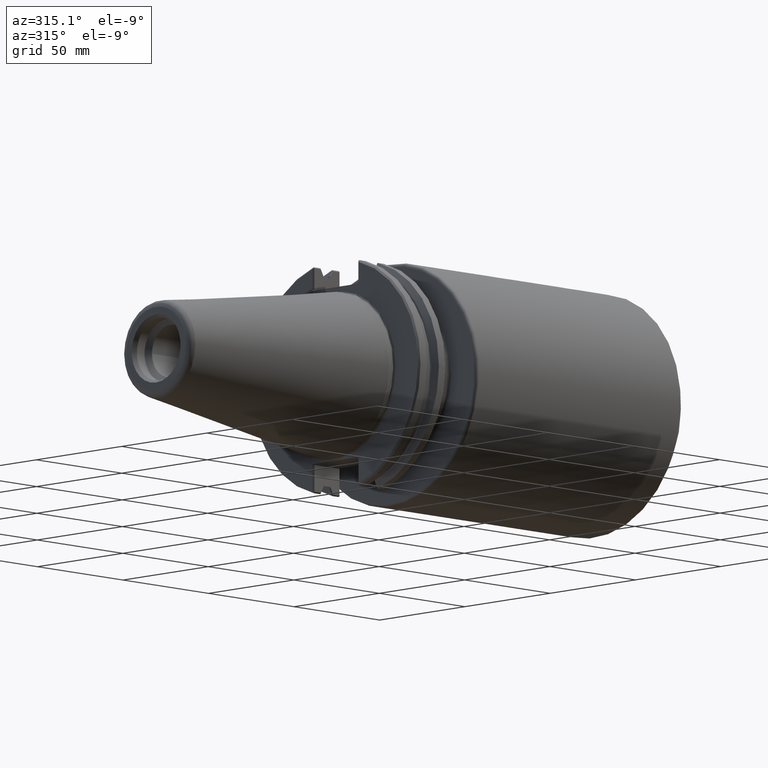
[diagram: clean part render]
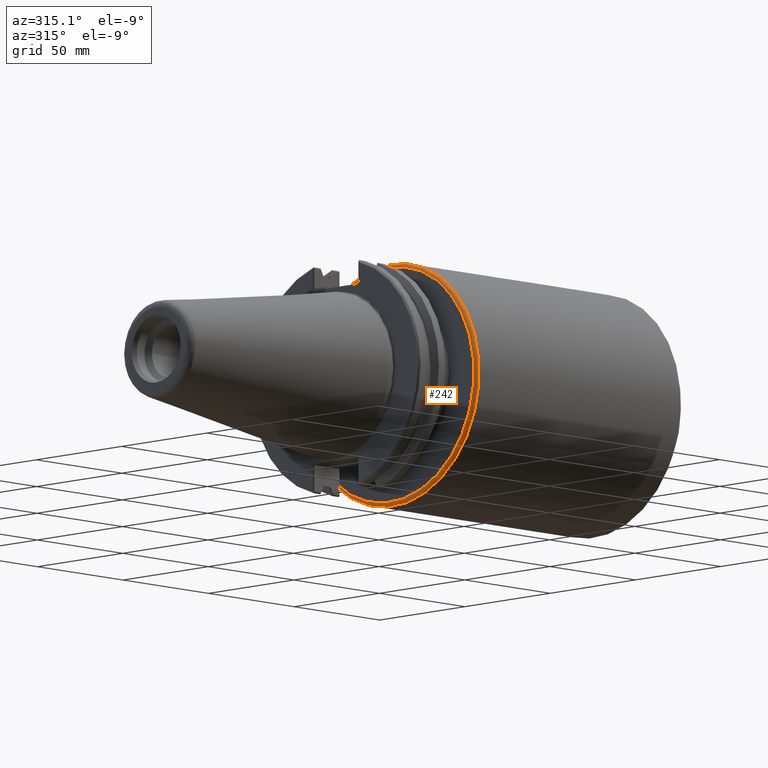
[diagram: same view with one face highlighted and labeled with its STEP entity id]
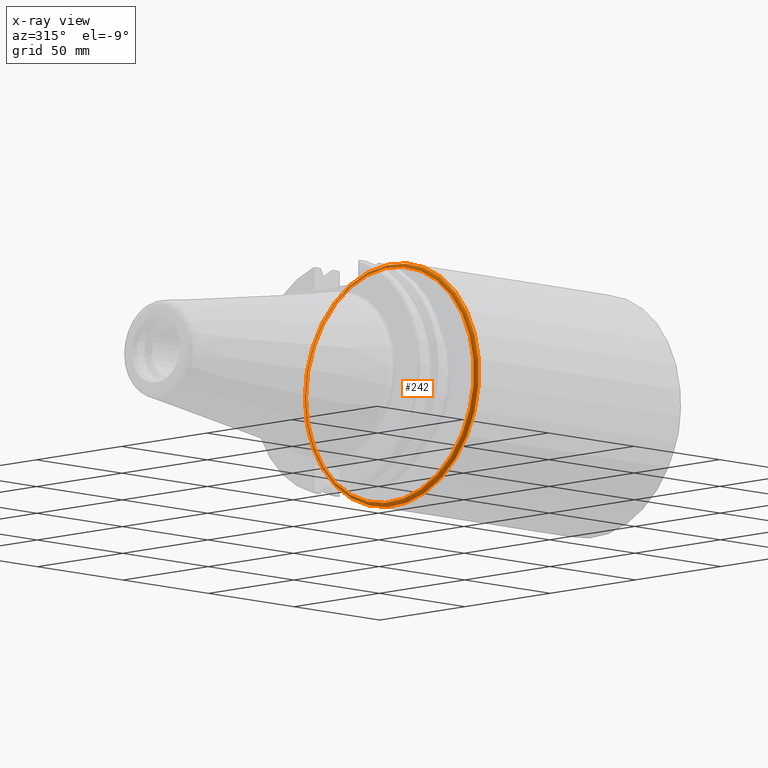
[diagram: x-ray of the same camera — body ghosted, the highlighted face saturated]
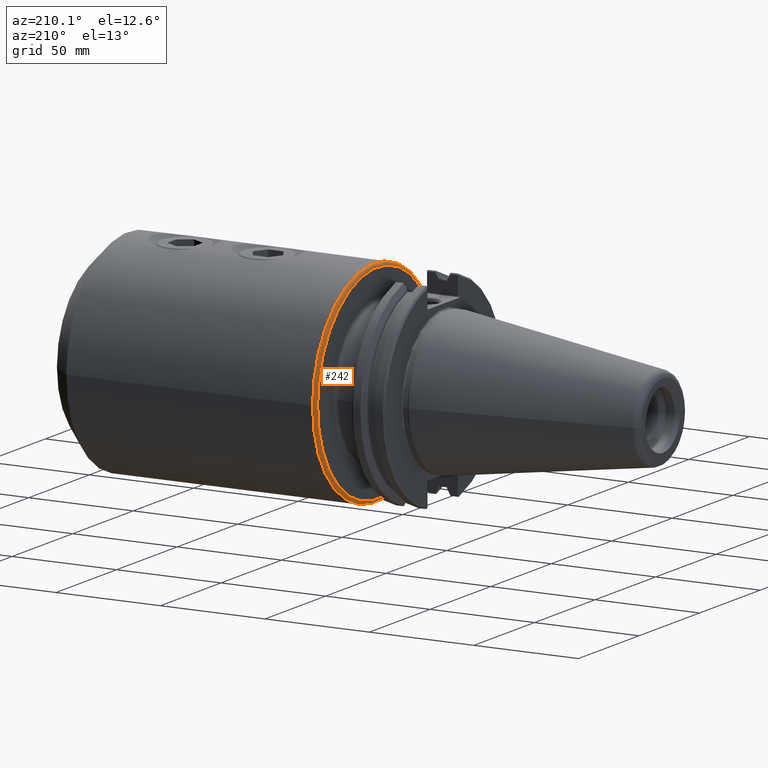
[diagram: same view with one face highlighted and labeled with its STEP entity id]
A machine part, auxiliary view. The second image highlights one B-rep face of the part: STEP entity #242.
The next image is the same camera in x-ray: the body ghosted, the highlighted face saturated — about 15% of this face is hidden behind the body in this view.
A second angle (auxiliary view) of the same face is appended — the face is thin or edge-on in the first view.
In plain terms, the highlighted toroidal blend (fillet) surface has major radius 49.276 mm and minor (blend) radius 1.524 mm.
Its self-contained STEP definition (entity closure, byte-faithful):
#208=CARTESIAN_POINT('',(1.38,1.94,0.0));
#209=VERTEX_POINT('',#208);
#210=CARTESIAN_POINT('',(1.38,0.0,0.0));
#211=DIRECTION('',(1.0,0.0,0.0));
#212=DIRECTION('',(0.0,-1.0,0.0));
#213=AXIS2_PLACEMENT_3D('',#210,#211,#212);
#214=CIRCLE('',#213,1.94);
#215=EDGE_CURVE('',#209,#209,#214,.T.);
#223=CARTESIAN_POINT('',(1.44,0.0,0.0));
#224=DIRECTION('',(1.0,0.0,0.0));
#225=DIRECTION('',(0.0,0.0,-1.0));
#226=AXIS2_PLACEMENT_3D('',#223,#224,#225);
#227=TOROIDAL_SURFACE('',#226,1.94,0.06);
#228=ORIENTED_EDGE('',*,*,#215,.T.);
#229=EDGE_LOOP('',(#228));
#230=FACE_OUTER_BOUND('',#229,.T.);
#231=CARTESIAN_POINT('',(1.44,2.0,-4.898587E-016));
#232=VERTEX_POINT('',#231);
#233=CARTESIAN_POINT('',(1.44,0.0,0.0));
#234=DIRECTION('',(-1.0,0.0,0.0));
#235=DIRECTION('',(0.0,-1.0,0.0));
#236=AXIS2_PLACEMENT_3D('',#233,#234,#235);
#237=CIRCLE('',#236,2.0);
#238=EDGE_CURVE('',#232,#232,#237,.T.);
#239=ORIENTED_EDGE('',*,*,#238,.T.);
#240=EDGE_LOOP('',(#239));
#241=FACE_BOUND('',#240,.T.);
#242=ADVANCED_FACE('',(#230,#241),#227,.T.);